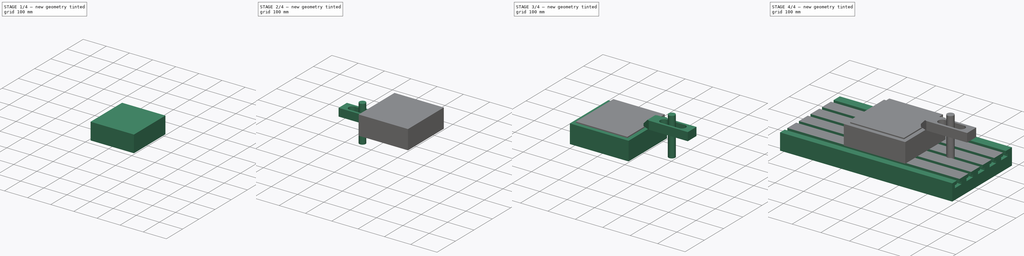
[diagram: build sequence overview — one tinted view per stage of 4, left to right]
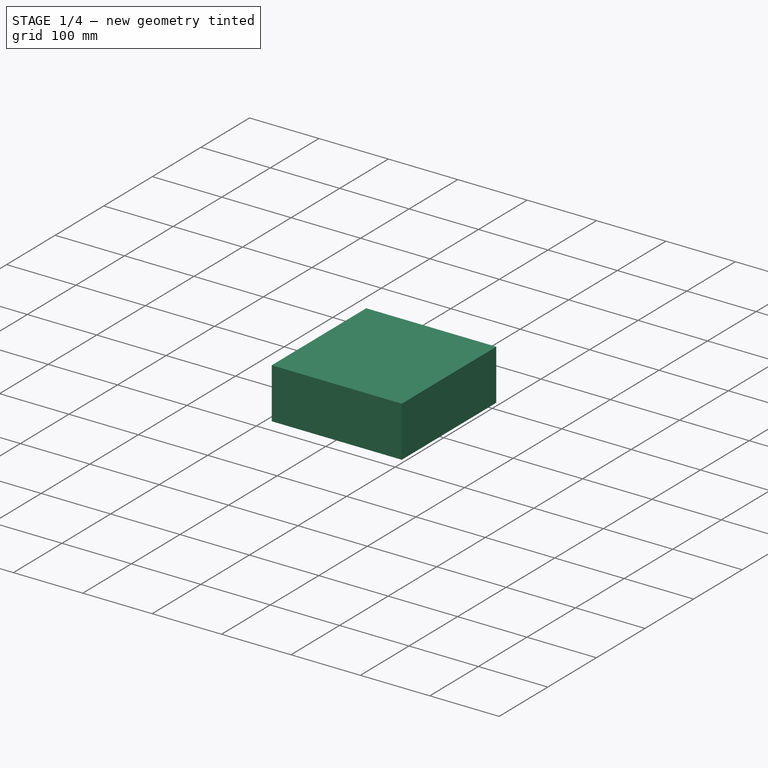
[diagram: stage 1 of 4 — iso view after this stage's code; geometry added in this stage tinted green]
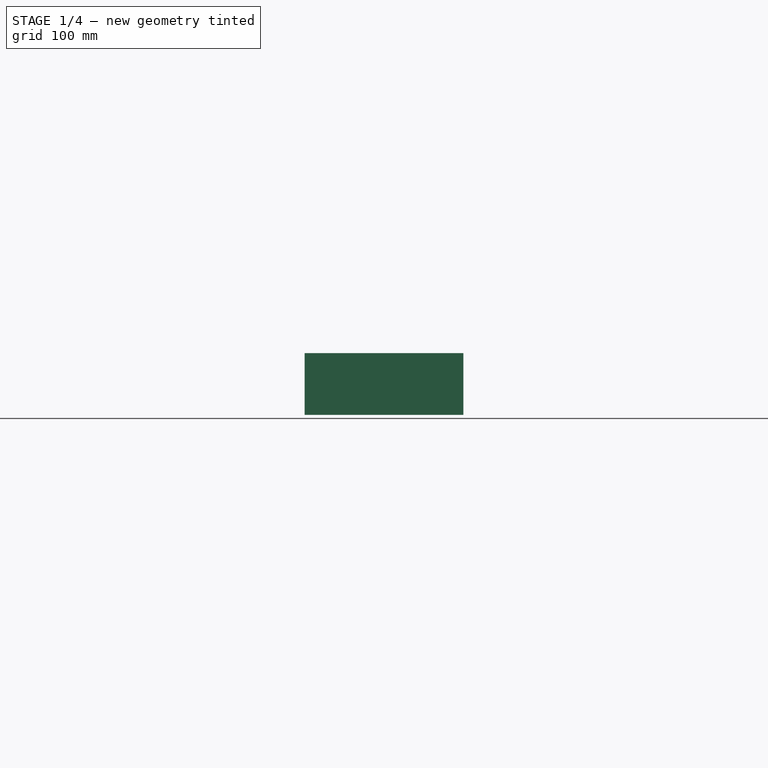
[diagram: stage 1 of 4 — front view after this stage's code; geometry added in this stage tinted green]
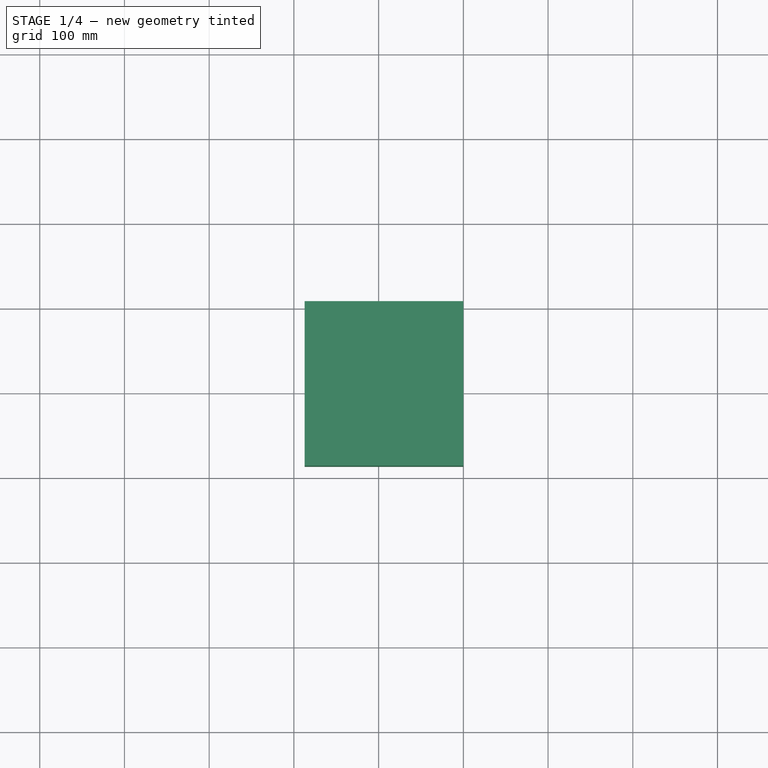
[diagram: stage 1 of 4 — top view after this stage's code; geometry added in this stage tinted green]
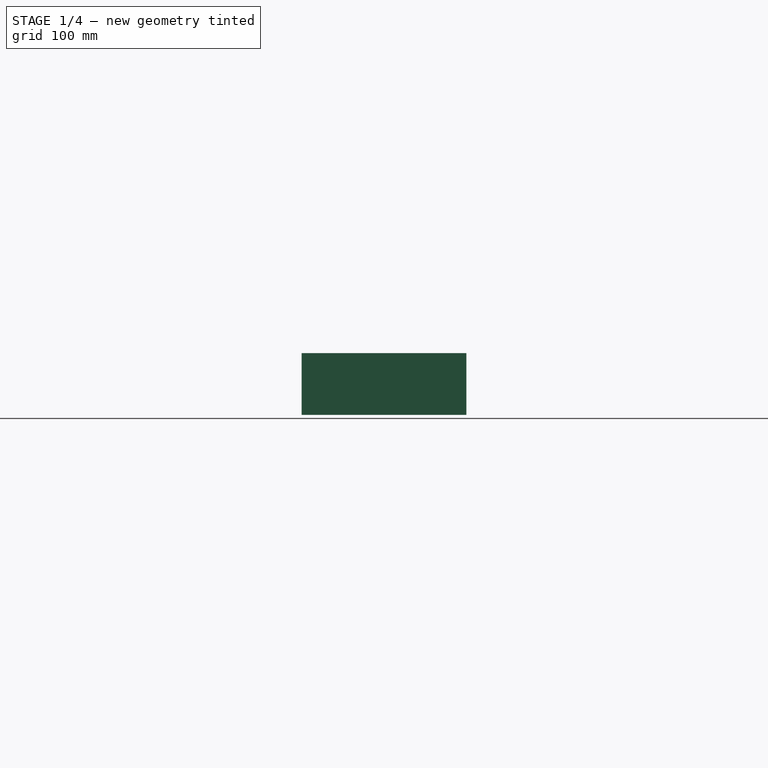
[diagram: stage 1 of 4 — right view after this stage's code; geometry added in this stage tinted green]
FCSTD DOCUMENT  (FreeCAD 0.17R13448 (Git))
Label: Safeheight
License: All rights reserved
LicenseURL: http://en.wikipedia.org/wiki/All_rights_reserved
objects: Sketcher::SketchObject×5, PartDesign::Pad×3, PartDesign::Body×3, PartDesign::Pocket×2, Part::FeaturePython×2, Path::FeaturePython×2, PartDesign::LinearPattern×1, PartDesign::Chamfer×1, Part::Cylinder×1, Part::Fuse×1, Part::Box×1, Part::Mirroring×1, Path::FeatureCompoundPython×1, App::FeaturePython×1
note: 26 computed .brp shape members not serialized (recipe doc carries the construction recipe); baked Part::Feature solids carry a one-line shape summary decoded from their .brp

FEATURE [Sketcher::SketchObject] Sketch
  MapMode = 5
  Support = -> [XY_Plane]
  sketch-geometry (4):
    g0: LineSegment StartX=-74.3299 StartY=93.025 StartZ=0 EndX=86.9922 EndY=93.025 EndZ=0
    g1: LineSegment StartX=86.9922 StartY=93.025 StartZ=0 EndX=86.9922 EndY=-71.3085 EndZ=0
    g2: LineSegment StartX=86.9922 StartY=-71.3085 StartZ=0 EndX=-74.3299 EndY=-71.3085 EndZ=0
    g3: LineSegment StartX=-74.3299 StartY=-71.3085 StartZ=0 EndX=-74.3299 EndY=93.025 EndZ=0
  constraints (8):
    c: Coincident(g0,g1)
    c: Coincident(g1,g2)
    c: Coincident(g2,g3)
    c: Coincident(g3,g0)
    c: Horizontal(g0)
    c: Horizontal(g2)
    c: Vertical(g1)
    c: Vertical(g3)
FEATURE [PartDesign::Pad] Pad
  Length = 60
  Length2 = 100
  Profile = -> Sketch
  Type = 0
FEATURE [Sketcher::SketchObject] Sketch001
  MapMode = 5
  Placement = pos=(0,0,60) rot=(0,0,1;0rad)
  Support = -> [Pad]
  sketch-geometry (8):
    g0: LineSegment StartX=-19.1946 StartY=-17.0405 StartZ=0 EndX=61.0241 EndY=-17.0405 EndZ=0
    g1: LineSegment StartX=61.0241 StartY=-17.0405 StartZ=0 EndX=61.0241 EndY=-81.2154 EndZ=0
    g2: LineSegment StartX=61.0241 StartY=-81.2154 StartZ=0 EndX=-19.1946 EndY=-81.2154 EndZ=0
    g3: LineSegment StartX=-19.1946 StartY=-81.2154 StartZ=0 EndX=-19.1946 EndY=-17.0405 EndZ=0
    g4: LineSegment StartX=-34.6461 StartY=71.0623 StartZ=0 EndX=40.3687 EndY=71.0623 EndZ=0
    g5: LineSegment StartX=40.3687 StartY=71.0623 StartZ=0 EndX=40.3687 EndY=31.6315 EndZ=0
    g6: LineSegment StartX=40.3687 StartY=31.6315 StartZ=0 EndX=-34.6461 EndY=31.6315 EndZ=0
    g7: LineSegment StartX=-34.6461 StartY=31.6315 StartZ=0 EndX=-34.6461 EndY=71.0623 EndZ=0
  constraints (16):
    c: Coincident(g0,g1)
    c: Coincident(g1,g2)
    c: Coincident(g2,g3)
    c: Coincident(g3,g0)
    c: Horizontal(g0)
    c: Horizontal(g2)
    c: Vertical(g1)
    c: Vertical(g3)
    c: Coincident(g4,g5)
    c: Coincident(g5,g6)
    c: Coincident(g6,g7)
    c: Coincident(g7,g4)
    c: Horizontal(g4)
    c: Horizontal(g6)
    c: Vertical(g5)
    c: Vertical(g7)
FEATURE [PartDesign::Pocket] Pocket
  BaseFeature = -> Pad
  Length = 34
  Length2 = 100
  Profile = -> Sketch001
  Type = 0
FEATURE [Path::FeaturePython] Default_Tool  label="Default Tool"  # Path/CAM operation (typed FeaturePython)
  HorizFeed = 0
  HorizRapid = 0
  SpindleDir = 0
  SpindleSpeed = 0
  ToolNumber = 1
  VertFeed = 0
  VertRapid = 0
  expr: HorizRapid = SetupSheet.HorizRapid
  expr: VertRapid = SetupSheet.VertRapid
FEATURE [Part::FeaturePython] Stock  # WARN: FeaturePython — macro-defined, semantics opaque (R4)
  Base = -> Body
  ExtXneg = 13
  ExtXpos = 13
  ExtYneg = 15
  ExtYpos = 15
  ExtZneg = 1
  ExtZpos = 12
  StockType = FromBase
FEATURE [Path::FeaturePython] Job  # Path/CAM operation (typed FeaturePython)
  Base = -> Clone
  GeometryTolerance = 0
  Operations = -> Operations
  PostProcessor = 3
  SetupSheet = -> SetupSheet
  Stock = -> Stock
  ToolController = -> [Default_Tool]
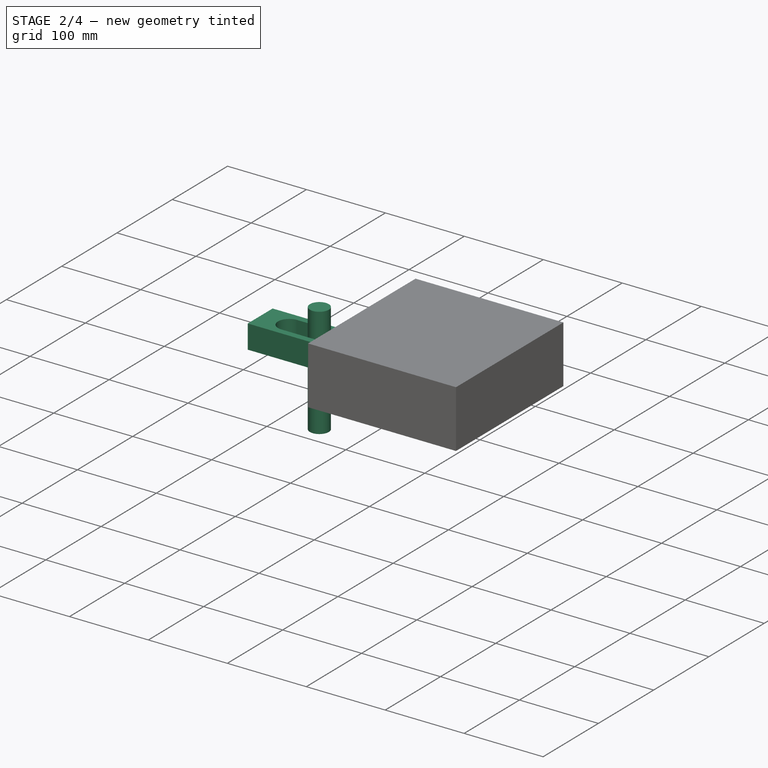
[diagram: stage 2 of 4 — iso view after this stage's code; geometry added in this stage tinted green]
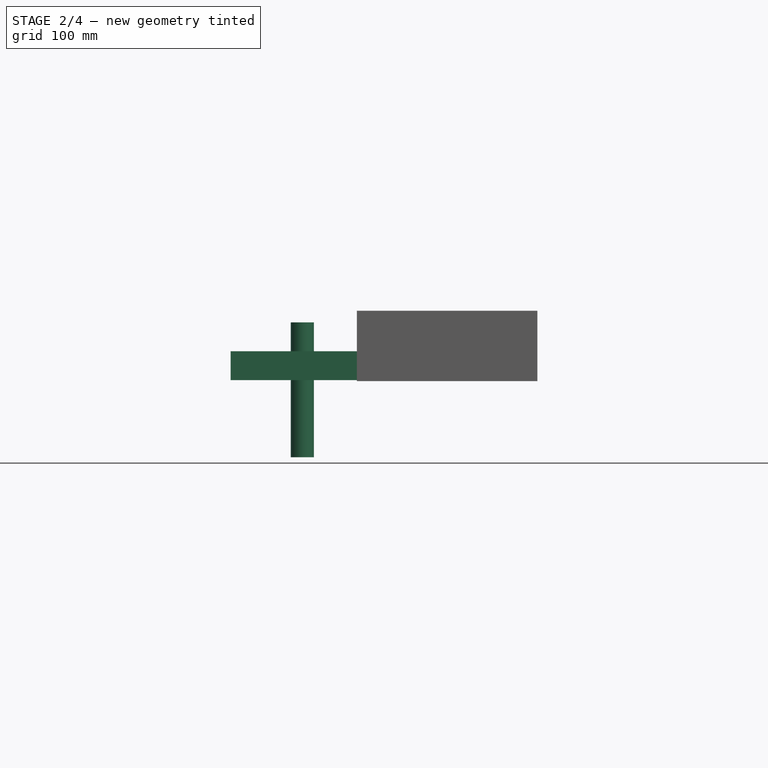
[diagram: stage 2 of 4 — front view after this stage's code; geometry added in this stage tinted green]
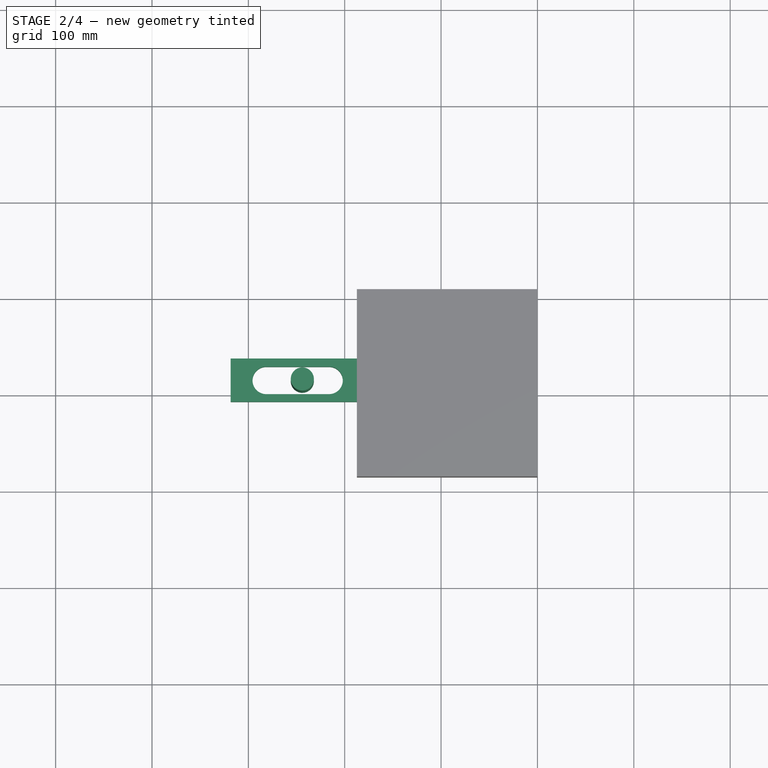
[diagram: stage 2 of 4 — top view after this stage's code; geometry added in this stage tinted green]
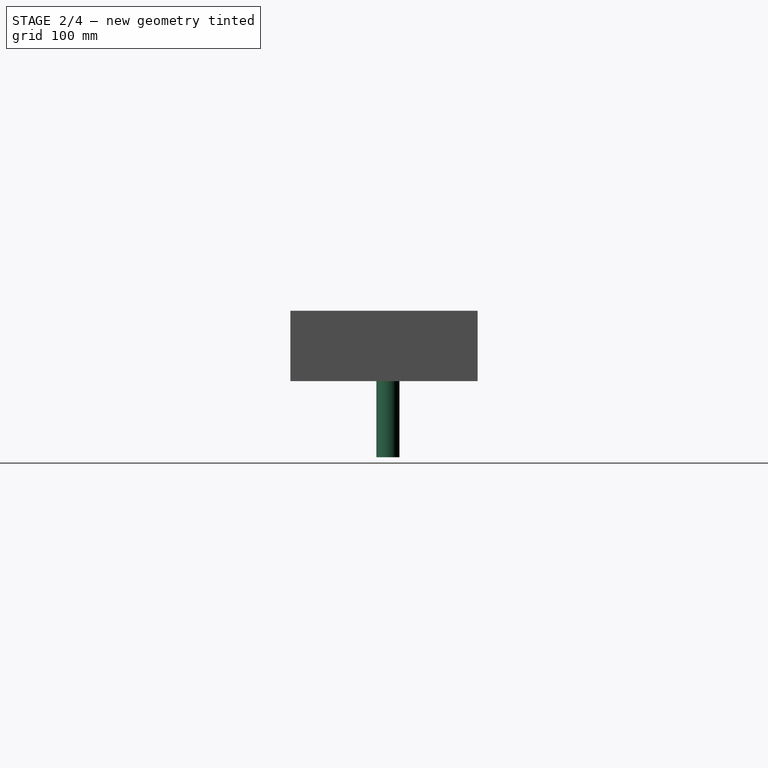
[diagram: stage 2 of 4 — right view after this stage's code; geometry added in this stage tinted green]
FEATURE [PartDesign::Body] Body001
  Group = -> [Sketch002,Pad001,Sketch003,Pocket001,LinearPattern]
  Origin = -> Body001Origin
  Tip = -> LinearPattern
FEATURE [Sketcher::SketchObject] Sketch004
  MapMode = 5
  Support = -> [XY_Plane002]
  sketch-geometry (11):
    g0: LineSegment StartX=-218.443 StartY=36.7302 StartZ=0 EndX=-76.08 EndY=36.7302 EndZ=0
    g1: LineSegment StartX=-48.9725 StartY=25.0575 StartZ=0 EndX=-48.9725 EndY=3.46658 EndZ=0
    g2: LineSegment StartX=-76.08 StartY=-8.2061 StartZ=0 EndX=-218.443 EndY=-8.2061 EndZ=0
    g3: LineSegment StartX=-218.443 StartY=-8.2061 StartZ=0 EndX=-218.443 EndY=36.7302 EndZ=0
    g4: ArcOfCircle CenterX=-181.447 CenterY=13.9868 CenterZ=0 NormalX=0 NormalY=0 NormalZ=1 AngleXU=0 Radius=14.2084 StartAngle=1.5708 EndAngle=4.71239
    g5: ArcOfCircle CenterX=-116.203 CenterY=13.9868 CenterZ=0 NormalX=0 NormalY=0 NormalZ=1 AngleXU=0 Radius=14.2084 StartAngle=4.71239 EndAngle=7.85398
    g6: LineSegment StartX=-181.447 StartY=-0.221525 StartZ=0 EndX=-116.203 EndY=-0.221525 EndZ=0
    g7: LineSegment StartX=-181.447 StartY=28.1952 StartZ=0 EndX=-116.203 EndY=28.1952 EndZ=0
    g8: LineSegment StartX=-76.08 StartY=36.7302 StartZ=0 EndX=-48.9725 EndY=25.0575 EndZ=0
    g9: LineSegment StartX=-48.9725 StartY=3.46658 StartZ=0 EndX=-76.08 EndY=-8.2061 EndZ=0
    g10: LineSegment [constr] StartX=-76.08 StartY=36.7302 StartZ=0 EndX=-76.08 EndY=-8.2061 EndZ=0
  constraints (21):
    c: Coincident(g2,g3)
    c: Coincident(g3,g0)
    c: Horizontal(g0)
    c: Horizontal(g2)
    c: Vertical(g1)
    c: Vertical(g3)
    c: Tangent(g4,g7) = 1.5708
    c: Tangent(g4,g6) = -1.5708
    c: Tangent(g6,g5) = -1.5708
    c: Tangent(g7,g5) = 1.5708
    c: Horizontal(g6)
    c: Equal(g4,g5)
    c: Coincident(g2,g9)
    c: Coincident(g1,g9)
    c: PointOnObject(g1,g8)
    c: Coincident(g0,g8)
    c: Equal(g9,g8)
    c: Coincident(g10,g0)
    c: Coincident(g10,g2)
    c: Vertical(g10)
    c: Coincident(g1,g8)
FEATURE [PartDesign::Pad] Pad002
  Length = 30
  Length2 = 100
  Profile = -> Sketch004
  Type = 0
FEATURE [PartDesign::Body] Body002
  Group = -> [Sketch004,Pad002,Chamfer]
  Origin = -> Body002Origin
  Placement = pos=(-1,0,0) rot=(0,0,1;0rad)
  Tip = -> Chamfer
FEATURE [Part::Cylinder] Cylinder
  Angle = 360
  AttacherType = Attacher::AttachEngine3D
  Height = 140
  Placement = pos=(-144,15,-80) rot=(0,0,1;0rad)
  Radius = 12
FEATURE [Path::FeatureCompoundPython] Operations  # Path/CAM operation (typed FeaturePython)
  UsePlacements = false
FEATURE [App::FeaturePython] SetupSheet  # Path/CAM operation (typed FeaturePython)
  ClearanceHeightExpression = StartDepth+SetupSheet.ClearanceHeightOffset
  ClearanceHeightOffset = 5
  FinalDepthExpression = OpFinalDepth
  HorizRapid = 0
  SafeHeightExpression = StartDepth+SetupSheet.SafeHeightOffset
  SafeHeightOffset = 3
  StartDepthExpression = OpStartDepth
  StepDownExpression = OpToolDiameter
  VertRapid = 0
FEATURE [Part::FeaturePython] Clone  label="Base-Body"  # Draft clone (typed FeaturePython)
  AttacherType = Attacher::AttachEngine3D
  Fuse = false
  Objects = -> [Body]
  PathResource = Base
  Scale = (1,1,1)
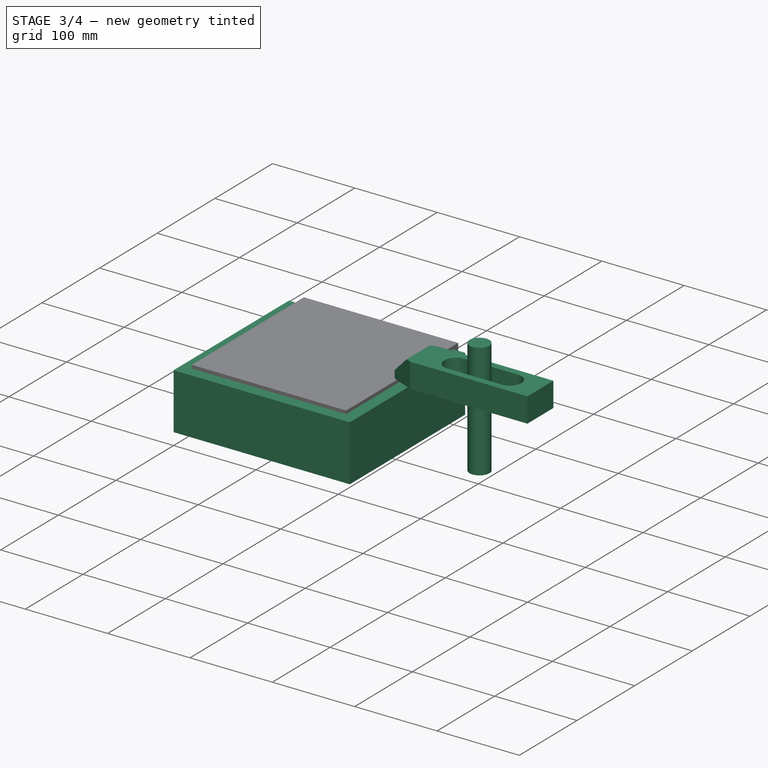
[diagram: stage 3 of 4 — iso view after this stage's code; geometry added in this stage tinted green]
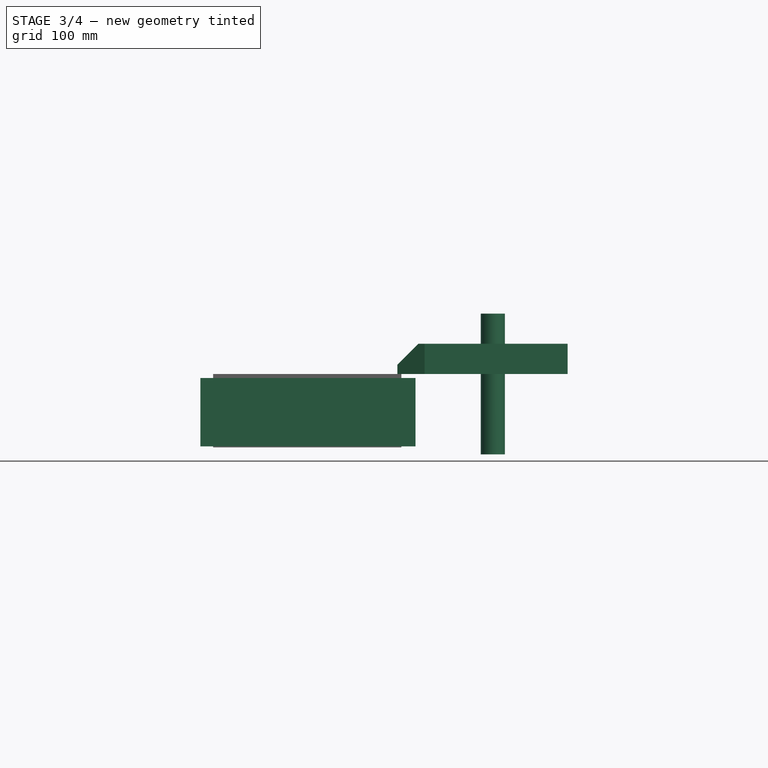
[diagram: stage 3 of 4 — front view after this stage's code; geometry added in this stage tinted green]
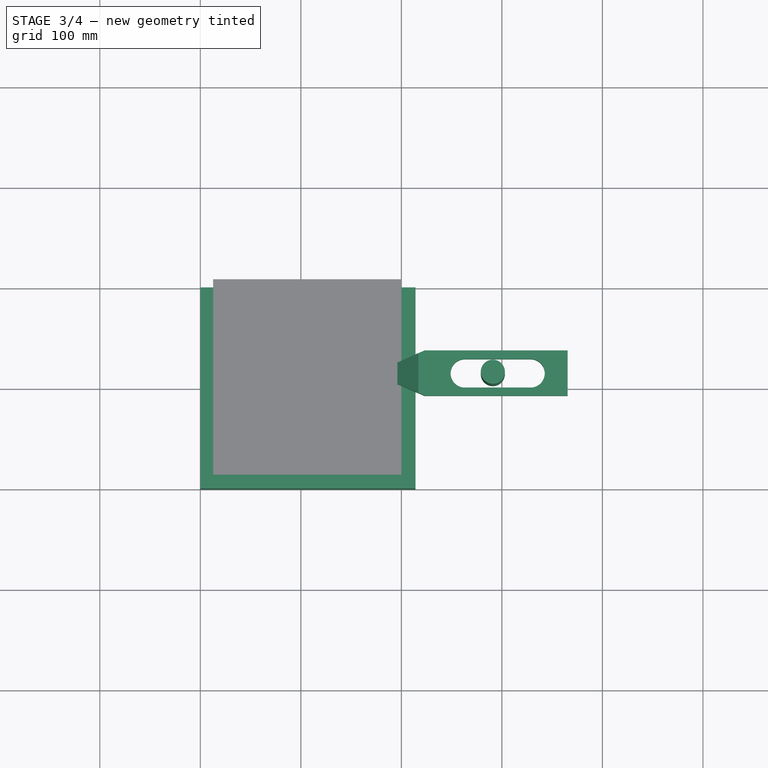
[diagram: stage 3 of 4 — top view after this stage's code; geometry added in this stage tinted green]
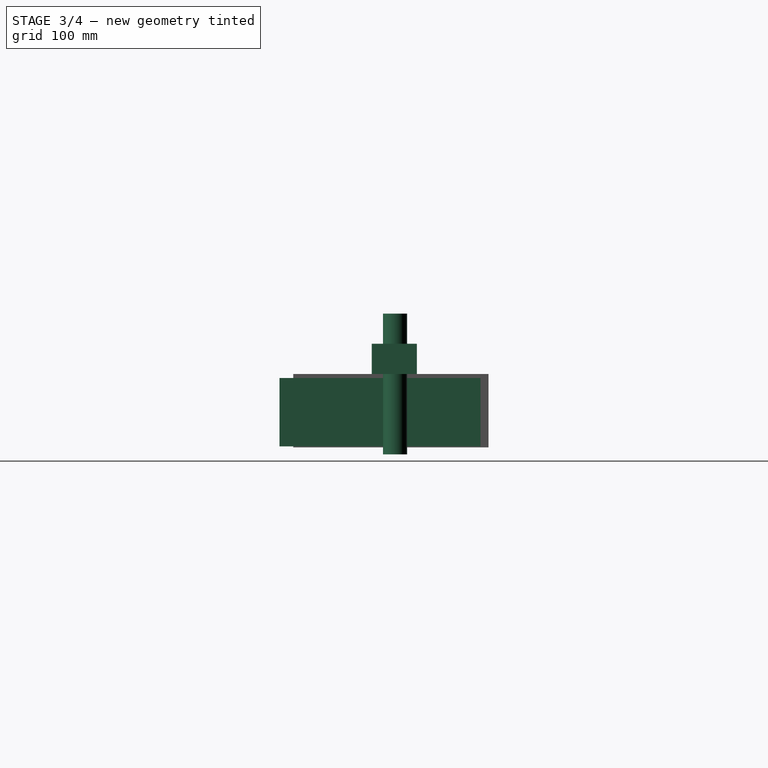
[diagram: stage 3 of 4 — right view after this stage's code; geometry added in this stage tinted green]
FEATURE [PartDesign::Chamfer] Chamfer
  Base = -> Pad002 [Edge10]
  BaseFeature = -> Pad002
  Size = 21
FEATURE [Part::Fuse] Fusion
  Base = -> Chamfer
  Placement = pos=(-29,0,72) rot=(0,0,1;0rad)
  Tool = -> Cylinder
FEATURE [Part::Box] Box  label="Cube"
  AttacherType = Attacher::AttachEngine3D
  Height = 68
  Length = 214
  Placement = pos=(-100,-100,0) rot=(0,0,1;0rad)
  Width = 200
FEATURE [Part::Mirroring] mirror  label="Mirror of Fusion"
  Base = (0,180,0)
  Normal = (1,0,0)
  Placement = pos=(18,0,0) rot=(0,0,1;0rad)
  Source = -> Fusion
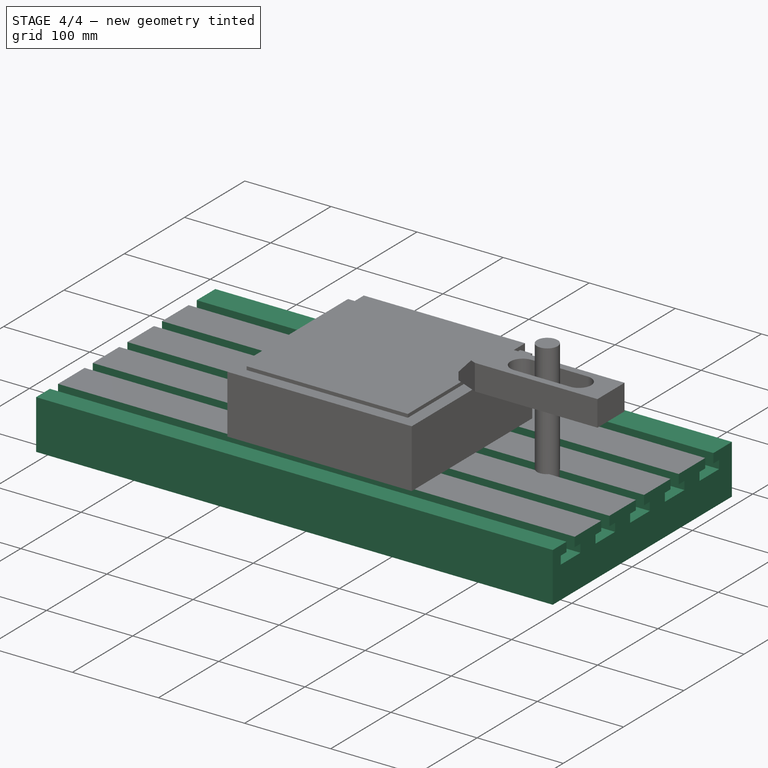
[diagram: stage 4 of 4 — iso view after this stage's code; geometry added in this stage tinted green]
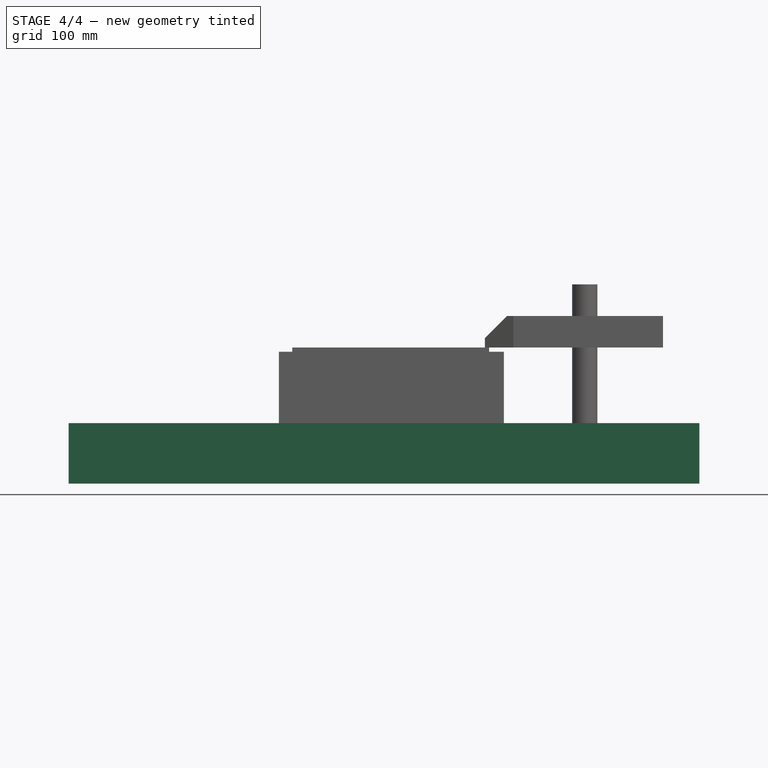
[diagram: stage 4 of 4 — front view after this stage's code; geometry added in this stage tinted green]
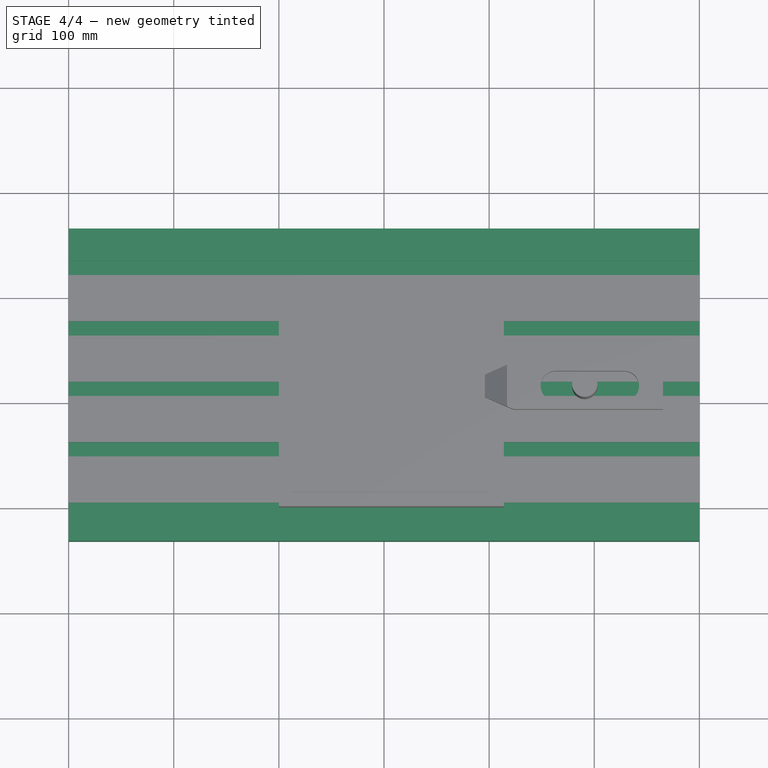
[diagram: stage 4 of 4 — top view after this stage's code; geometry added in this stage tinted green]
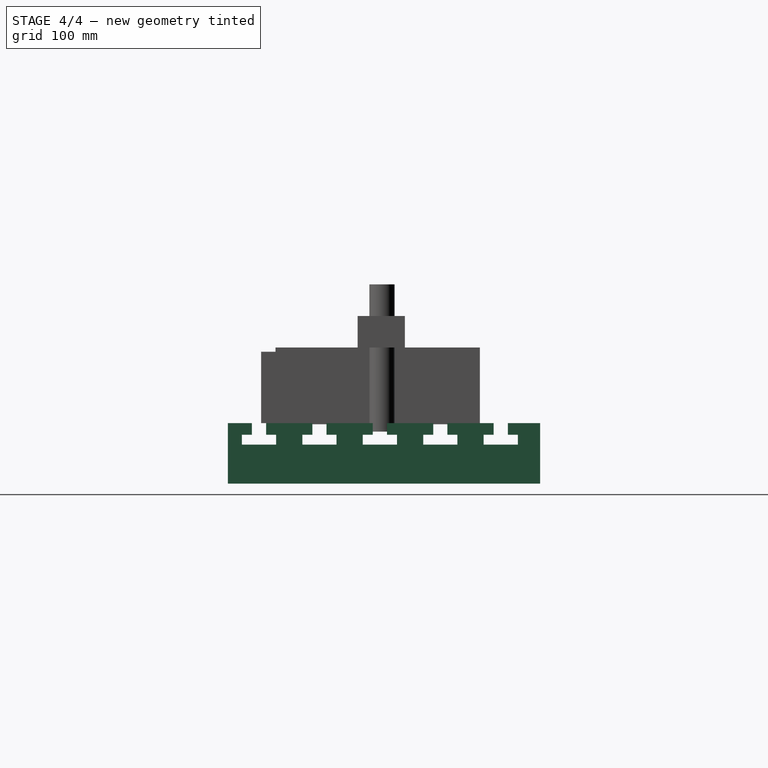
[diagram: stage 4 of 4 — right view after this stage's code; geometry added in this stage tinted green]
FEATURE [PartDesign::Body] Body
  Group = -> [Sketch,Pad,Sketch001,Pocket]
  Origin = -> BodyOrigin
  Tip = -> Pocket
FEATURE [Sketcher::SketchObject] Sketch002
  MapMode = 5
  Placement = pos=(0,0,0) rot=(0.57735,0.57735,0.57735;2.0944rad)
  Support = -> [YZ_Plane001]
  sketch-geometry (4):
    g0: LineSegment StartX=-131.71 StartY=0 StartZ=0 EndX=165.455 EndY=0 EndZ=0
    g1: LineSegment StartX=165.455 StartY=0 StartZ=0 EndX=165.455 EndY=-57.4493 EndZ=0
    g2: LineSegment StartX=165.455 StartY=-57.4493 StartZ=0 EndX=-131.71 EndY=-57.4493 EndZ=0
    g3: LineSegment StartX=-131.71 StartY=-57.4493 StartZ=0 EndX=-131.71 EndY=0 EndZ=0
  constraints (9):
    c: Coincident(g0,g1)
    c: Coincident(g1,g2)
    c: Coincident(g2,g3)
    c: Coincident(g3,g0)
    c: Horizontal(g0)
    c: Horizontal(g2)
    c: Vertical(g1)
    c: Vertical(g3)
    c: PointOnObject(g0,g-1)
FEATURE [PartDesign::Pad] Pad001
  Length = 600
  Length2 = 100
  Midplane = true
  Placement = pos=(0,0,0) rot=(0.57735,0.57735,0.57735;2.0944rad)
  Profile = -> Sketch002
  Type = 0
FEATURE [Sketcher::SketchObject] Sketch003
  MapMode = 5
  Placement = pos=(300,0,0) rot=(0.57735,0.57735,0.57735;2.0944rad)
  Support = -> [Pad001]
  sketch-geometry (8):
    g0: LineSegment StartX=-108.802 StartY=0 StartZ=0 EndX=-108.802 EndY=-10.9484 EndZ=0
    g1: LineSegment StartX=-108.802 StartY=-10.9484 StartZ=0 EndX=-118.305 EndY=-10.9484 EndZ=0
    g2: LineSegment StartX=-118.305 StartY=-10.9484 StartZ=0 EndX=-118.305 EndY=-20.4518 EndZ=0
    g3: LineSegment StartX=-118.305 StartY=-20.4518 StartZ=0 EndX=-85.7905 EndY=-20.4518 EndZ=0
    g4: LineSegment StartX=-85.7905 StartY=-20.4518 StartZ=0 EndX=-85.7905 EndY=-10.9484 EndZ=0
    g5: LineSegment StartX=-85.7905 StartY=-10.9484 StartZ=0 EndX=-95.2939 EndY=-10.9484 EndZ=0
    g6: LineSegment StartX=-95.2939 StartY=-10.9484 StartZ=0 EndX=-95.2939 EndY=0 EndZ=0
    g7: LineSegment StartX=-95.2939 StartY=0 StartZ=0 EndX=-108.802 EndY=0 EndZ=0
  constraints (21):
    c: PointOnObject(g0,g-1)
    c: Vertical(g0)
    c: Coincident(g0,g1)
    c: Coincident(g1,g2)
    c: Coincident(g2,g3)
    c: Horizontal(g3)
    c: Coincident(g3,g4)
    c: Coincident(g4,g5)
    c: Horizontal(g5)
    c: Coincident(g5,g6)
    c: PointOnObject(g6,g-1)
    c: Vertical(g6)
    c: Coincident(g6,g7)
    c: Coincident(g7,g0)
    c: Horizontal(g1)
    c: Vertical(g2)
    c: Vertical(g4)
    c: Equal(g0,g6)
    c: Equal(g2,g4)
    c: Equal(g5,g1)
    c: Equal(g1,g2)
FEATURE [PartDesign::Pocket] Pocket001
  BaseFeature = -> Pad001
  Length = 600
  Length2 = 100
  Placement = pos=(0,0,0) rot=(0.57735,0.57735,0.57735;2.0944rad)
  Profile = -> Sketch003
  Type = 0
FEATURE [PartDesign::LinearPattern] LinearPattern
  BaseFeature = -> Pocket001
  Direction = -> Sketch003 [H_Axis]
  Length = 230
  Occurrences = 5
  Originals = -> [Pocket001]
  Placement = pos=(0,0,0) rot=(0.57735,0.57735,0.57735;2.0944rad)
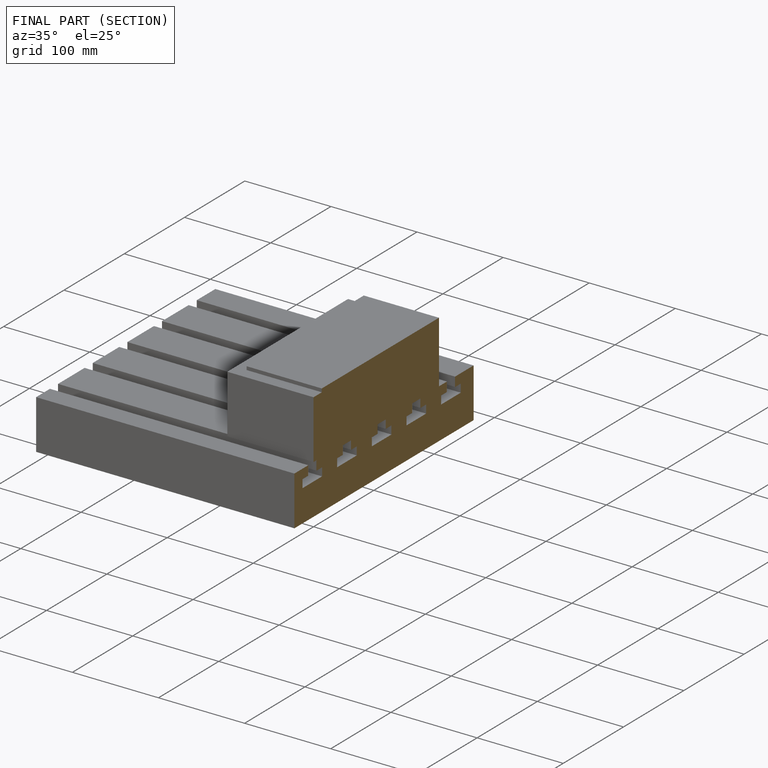
[diagram: finished part — half-section view (interior)]
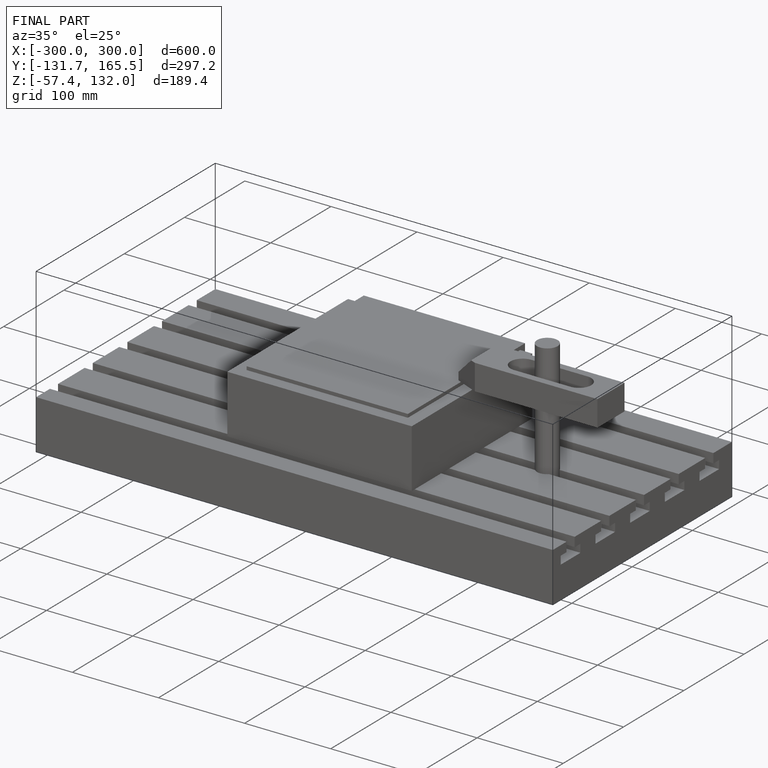
[diagram: finished part — iso view with bounding-box wireframe]
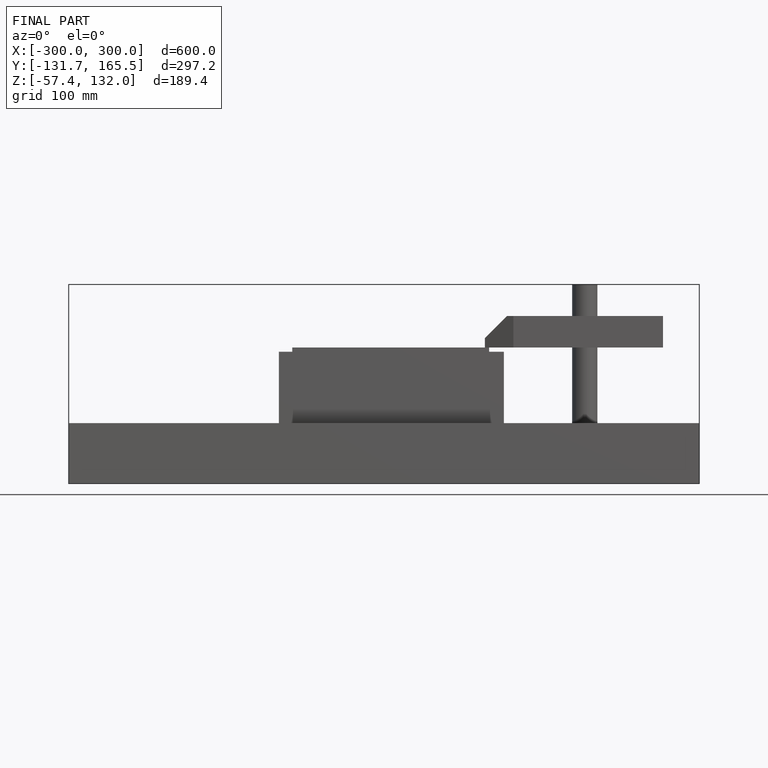
[diagram: finished part — front view with bounding-box wireframe]
